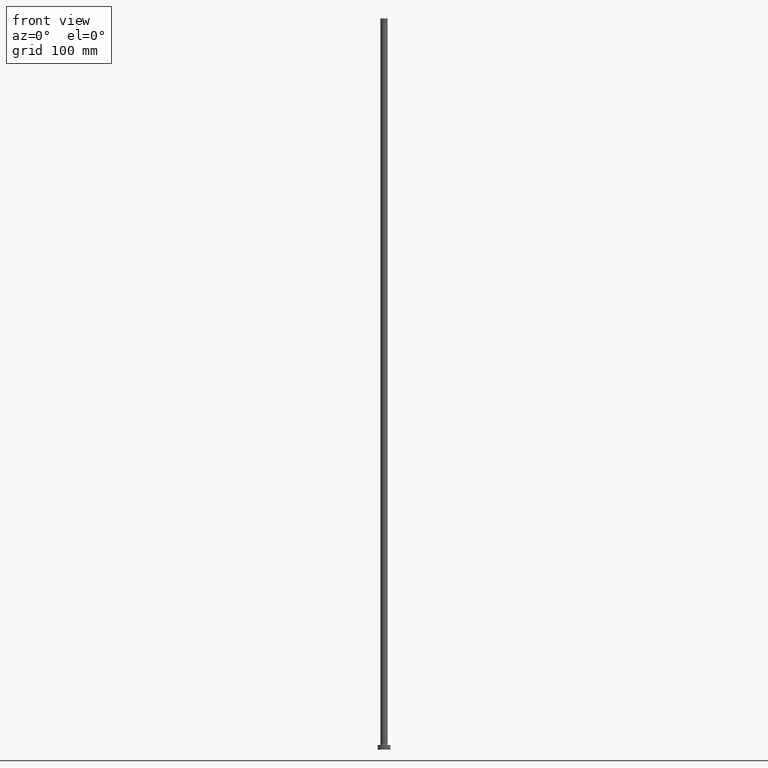
[diagram: clean part render]
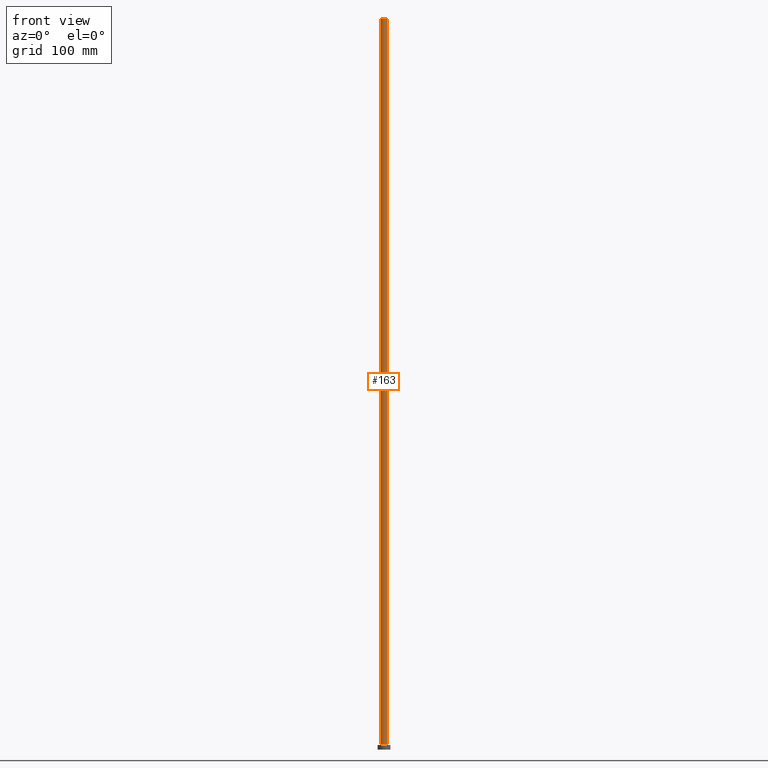
[diagram: same view with one face highlighted and labeled with its STEP entity id]
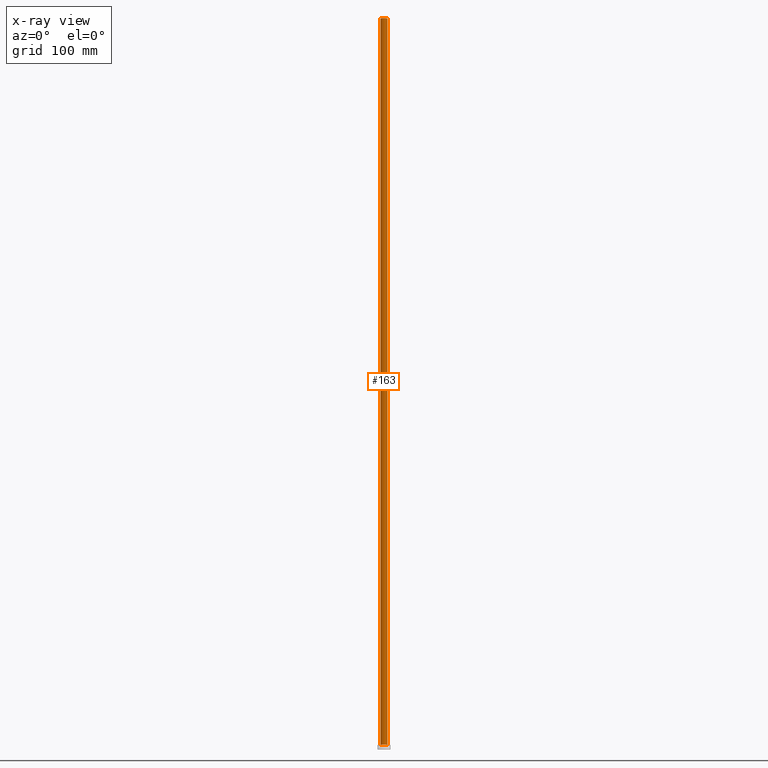
[diagram: x-ray of the same camera — body ghosted, the highlighted face saturated]
A machine part, front view. The second image highlights one B-rep face of the part: STEP entity #163.
The next image is the same camera in x-ray: the body ghosted, the highlighted face saturated — about 0% of this face is hidden behind the body in this view.
In plain terms, the highlighted cylindrical surface (edge-blend (fillet) strip) has radius 4 mm, axis along (-0, -0, -1).
Its self-contained STEP definition (entity closure, byte-faithful):
#4 = EDGE_LOOP ( 'NONE', ( #56, #61, #444, #24 ) ) ;
#9 = EDGE_CURVE ( 'NONE', #232, #100, #204, .T. ) ;
#13 = CARTESIAN_POINT ( 'NONE',  ( 0.000000000000000000, 0.000000000000000000, 800.0000000000000000 ) ) ;
#21 = CARTESIAN_POINT ( 'NONE',  ( 4.000000000000000000, 4.898587196589412829E-16, 800.0000000000000000 ) ) ;
#24 = ORIENTED_EDGE ( 'NONE', *, *, #33, .T. ) ;
#33 = EDGE_CURVE ( 'NONE', #155, #100, #373, .T. ) ;
#56 = ORIENTED_EDGE ( 'NONE', *, *, #9, .F. ) ;
#61 = ORIENTED_EDGE ( 'NONE', *, *, #91, .F. ) ;
#67 = DIRECTION ( 'NONE',  ( -0.000000000000000000, -0.000000000000000000, -1.000000000000000000 ) ) ;
#70 = DIRECTION ( 'NONE',  ( -0.000000000000000000, -0.000000000000000000, -1.000000000000000000 ) ) ;
#76 = CARTESIAN_POINT ( 'NONE',  ( 0.000000000000000000, 0.000000000000000000, 800.0000000000000000 ) ) ;
#91 = EDGE_CURVE ( 'NONE', #274, #232, #252, .T. ) ;
#100 = VERTEX_POINT ( 'NONE', #283 ) ;
#107 = FACE_OUTER_BOUND ( 'NONE', #4, .T. ) ;
#111 = DIRECTION ( 'NONE',  ( -0.000000000000000000, -0.000000000000000000, -1.000000000000000000 ) ) ;
#137 = DIRECTION ( 'NONE',  ( 0.000000000000000000, 0.000000000000000000, 1.000000000000000000 ) ) ;
#150 = AXIS2_PLACEMENT_3D ( 'NONE', #348, #313, #461 ) ;
#155 = VERTEX_POINT ( 'NONE', #257 ) ;
#163 = ADVANCED_FACE ( 'NONE', ( #107 ), #293, .T. ) ;
#171 = EDGE_CURVE ( 'NONE', #274, #155, #220, .T. ) ;
#204 = LINE ( 'NONE', #384, #448 ) ;
#206 = AXIS2_PLACEMENT_3D ( 'NONE', #13, #137, #432 ) ;
#220 = LINE ( 'NONE', #436, #337 ) ;
#232 = VERTEX_POINT ( 'NONE', #21 ) ;
#252 = CIRCLE ( 'NONE', #206, 4.000000000000000000 ) ;
#257 = CARTESIAN_POINT ( 'NONE',  ( -4.000000000000000000, 0.000000000000000000, 5.499999999999949374 ) ) ;
#274 = VERTEX_POINT ( 'NONE', #353 ) ;
#283 = CARTESIAN_POINT ( 'NONE',  ( 4.000000000000000000, 4.898587196589412829E-16, 5.499999999999949374 ) ) ;
#293 = CYLINDRICAL_SURFACE ( 'NONE', #402, 4.000000000000000000 ) ;
#313 = DIRECTION ( 'NONE',  ( 0.000000000000000000, 0.000000000000000000, 1.000000000000000000 ) ) ;
#318 = DIRECTION ( 'NONE',  ( -1.000000000000000000, 0.000000000000000000, 0.000000000000000000 ) ) ;
#337 = VECTOR ( 'NONE', #111, 1000.000000000000000 ) ;
#348 = CARTESIAN_POINT ( 'NONE',  ( 0.000000000000000000, 0.000000000000000000, 5.499999999999949374 ) ) ;
#353 = CARTESIAN_POINT ( 'NONE',  ( -4.000000000000000000, 0.000000000000000000, 800.0000000000000000 ) ) ;
#373 = CIRCLE ( 'NONE', #150, 4.000000000000000000 ) ;
#384 = CARTESIAN_POINT ( 'NONE',  ( 4.000000000000000000, 4.898587196589412829E-16, 800.0000000000000000 ) ) ;
#402 = AXIS2_PLACEMENT_3D ( 'NONE', #76, #70, #318 ) ;
#432 = DIRECTION ( 'NONE',  ( 1.000000000000000000, 0.000000000000000000, 0.000000000000000000 ) ) ;
#436 = CARTESIAN_POINT ( 'NONE',  ( -4.000000000000000000, 0.000000000000000000, 800.0000000000000000 ) ) ;
#444 = ORIENTED_EDGE ( 'NONE', *, *, #171, .T. ) ;
#448 = VECTOR ( 'NONE', #67, 1000.000000000000000 ) ;
#461 = DIRECTION ( 'NONE',  ( 1.000000000000000000, 0.000000000000000000, 0.000000000000000000 ) ) ;